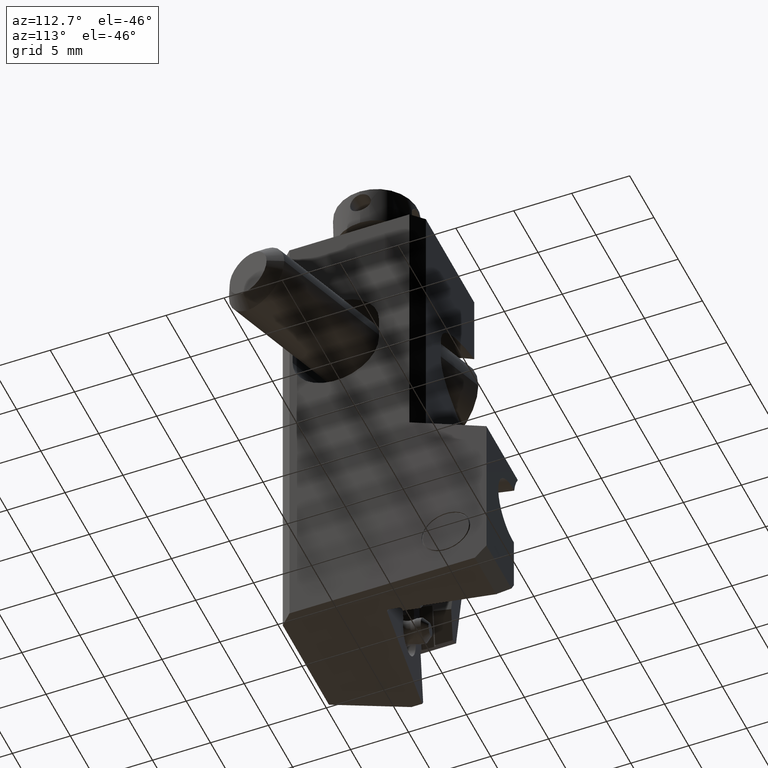
[diagram: clean part render]
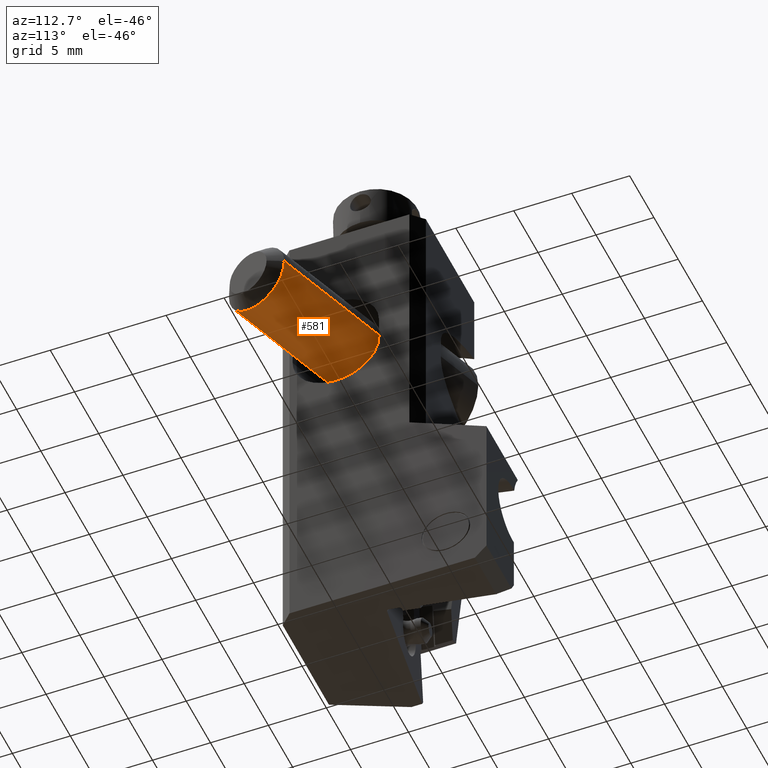
[diagram: same view with one face highlighted and labeled with its STEP entity id]
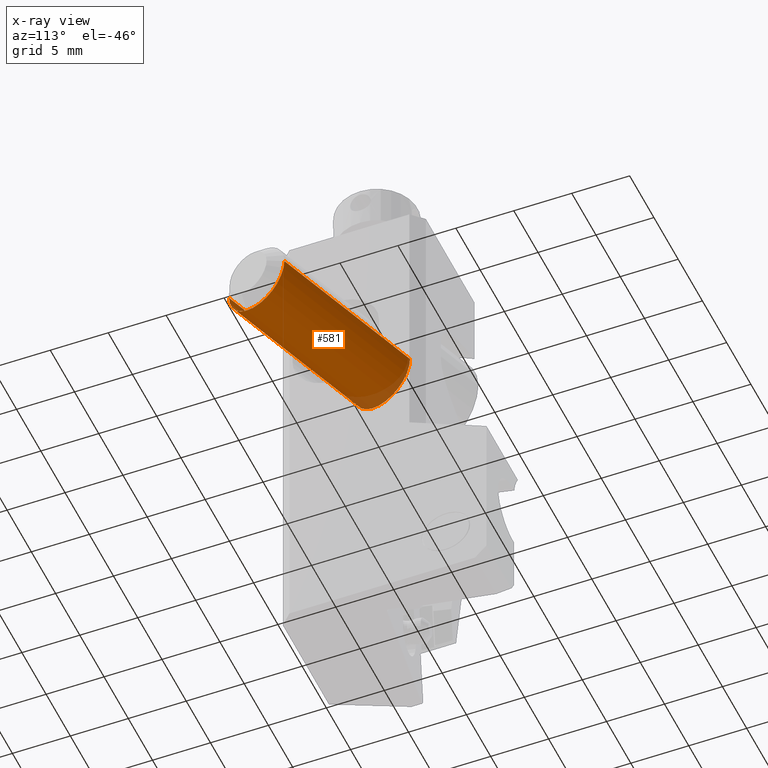
[diagram: x-ray of the same camera — body ghosted, the highlighted face saturated]
A machine part, auxiliary view. The second image highlights one B-rep face of the part: STEP entity #581.
The next image is the same camera in x-ray: the body ghosted, the highlighted face saturated — about 6% of this face is hidden behind the body in this view.
In plain terms, the highlighted cylindrical surface (partial cylindrical patch) has radius 3 mm, axis along (0.9397, -0.342, 0).
Its self-contained STEP definition (entity closure, byte-faithful):
#201=CYLINDRICAL_SURFACE('',#4630,3.000000000019);
#365=CIRCLE('',#4627,3.000000000019);
#366=CIRCLE('',#4629,3.000000000001);
#581=ADVANCED_FACE('',(#903),#201,.T.);
#903=FACE_OUTER_BOUND('',#1130,.T.);
#1130=EDGE_LOOP('',(#2331,#2332,#2333,#2334));
#2331=ORIENTED_EDGE('',*,*,#3346,.T.);
#2332=ORIENTED_EDGE('',*,*,#3347,.T.);
#2333=ORIENTED_EDGE('',*,*,#3345,.F.);
#2334=ORIENTED_EDGE('',*,*,#3348,.T.);
#2764=VERTEX_POINT('',#7688);
#2765=VERTEX_POINT('',#7690);
#2766=VERTEX_POINT('',#7696);
#2767=VERTEX_POINT('',#7697);
#3345=EDGE_CURVE('',#2765,#2764,#365,.T.);
#3346=EDGE_CURVE('',#2766,#2767,#366,.T.);
#3347=EDGE_CURVE('',#2767,#2764,#3711,.T.);
#3348=EDGE_CURVE('',#2765,#2766,#3712,.T.);
#3711=LINE('',#7698,#4064);
#3712=LINE('',#7699,#4065);
#4064=VECTOR('',#5831,1.);
#4065=VECTOR('',#5832,1.);
#4627=AXIS2_PLACEMENT_3D('',#7693,#5825,#5826);
#4629=AXIS2_PLACEMENT_3D('',#7695,#5829,#5830);
#4630=AXIS2_PLACEMENT_3D('',#7700,#5833,#5834);
#5825=DIRECTION('',(0.939692620785421,-0.342020143327008,0.));
#5826=DIRECTION('',(-0.342020143327008,-0.939692620785421,0.));
#5829=DIRECTION('',(0.939692620785822,-0.342020143325908,0.));
#5830=DIRECTION('',(-0.342020143325908,-0.939692620785821,0.));
#5831=DIRECTION('',(0.939692620785649,-0.342020143326381,0.));
#5832=DIRECTION('',(-0.939692620785605,0.342020143326502,0.));
#5833=DIRECTION('',(0.939692620785421,-0.342020143327008,0.));
#5834=DIRECTION('',(-0.342020143327008,-0.939692620785421,0.));
#7688=CARTESIAN_POINT('',(9.75960546648,4.640327429442,-12.));
#7690=CARTESIAN_POINT('',(7.707484606525,-0.9978282952962,-12.));
#7693=CARTESIAN_POINT('',(8.733545036494,1.821249567061,-12.));
#7695=CARTESIAN_POINT('',(-5.126921120089,6.866046681143,-12.));
#7696=CARTESIAN_POINT('',(-6.152981550071,4.046968818772,-12.));
#7697=CARTESIAN_POINT('',(-4.100860690108,9.685124543505,-12.));
#7698=CARTESIAN_POINT('',(-4.100860690108,9.685124543505,-12.));
#7699=CARTESIAN_POINT('',(7.707484606525,-0.9978282952962,-12.));
#7700=CARTESIAN_POINT('',(-5.404130443227,6.966942623417,-12.));